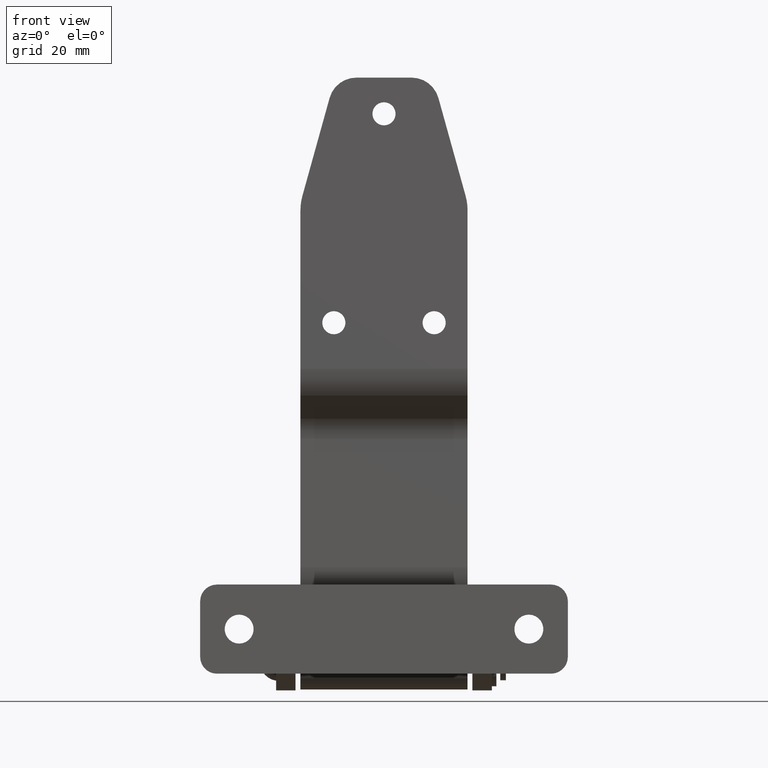
[diagram: clean part render]
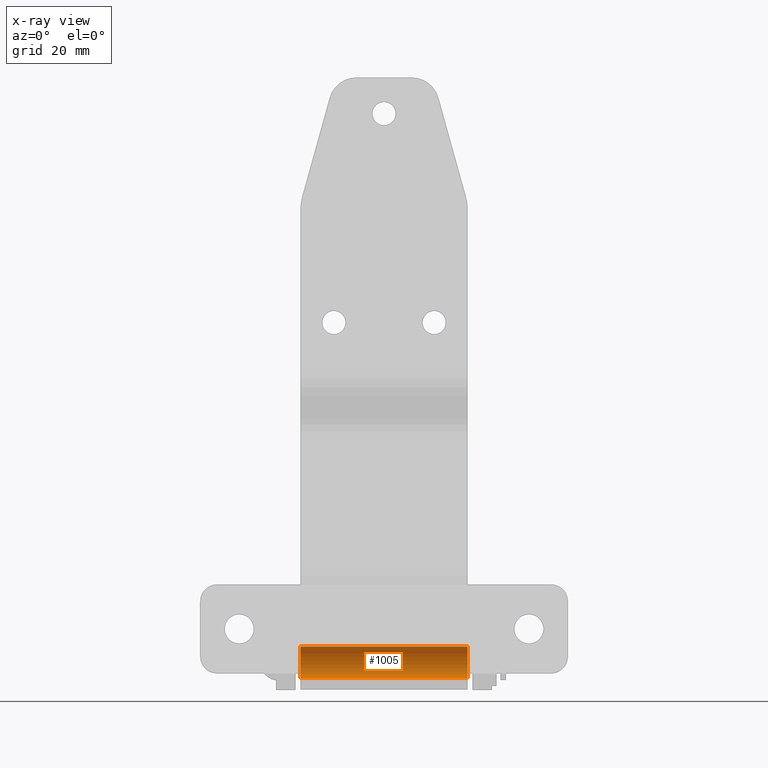
[diagram: x-ray — body ghosted, one internal face saturated and labeled with its STEP entity id]
A machine part, front view, then the same camera in x-ray: the body is ghosted and one INTERNAL B-rep face — a face not visible from any outside direction — is saturated and labeled: STEP entity #1005.
In plain terms, the highlighted cylindrical surface (edge-blend (fillet) strip) has radius 5.7 mm, axis along (-1, -0, -0).
Its self-contained STEP definition (entity closure, byte-faithful):
#34 = AXIS2_PLACEMENT_3D ( 'NONE', #2050, #2057, #2058 ) ;
#124 = EDGE_CURVE ( 'NONE', #3020, #3032, #4182, .T. ) ;
#505 = CARTESIAN_POINT ( 'NONE',  ( 30.00000000000000000, 6.980486755139913100E-016, -5.700000000000000200 ) ) ;
#509 = CARTESIAN_POINT ( 'NONE',  ( -30.00000000000000000, 0.0000000000000000000, 5.700000000000000200 ) ) ;
#517 = CARTESIAN_POINT ( 'NONE',  ( 30.00000000000000000, 0.0000000000000000000, 5.700000000000000200 ) ) ;
#525 = CARTESIAN_POINT ( 'NONE',  ( -30.00000000000000000, 6.980486755139913100E-016, -5.700000000000000200 ) ) ;
#1005 = ADVANCED_FACE ( 'NONE', ( #5232 ), #5249, .F. ) ;
#1095 = EDGE_CURVE ( 'NONE', #3040, #3024, #4215, .T. ) ;
#1114 = CARTESIAN_POINT ( 'NONE',  ( 30.00000000000000000, 0.0000000000000000000, 0.0000000000000000000 ) ) ;
#1115 = DIRECTION ( 'NONE',  ( 1.000000000000000000, 0.0000000000000000000, 0.0000000000000000000 ) ) ;
#1116 = DIRECTION ( 'NONE',  ( 0.0000000000000000000, 0.0000000000000000000, -1.000000000000000000 ) ) ;
#1209 = CARTESIAN_POINT ( 'NONE',  ( 30.00000000000000000, 0.0000000000000000000, 0.0000000000000000000 ) ) ;
#1210 = DIRECTION ( 'NONE',  ( -1.000000000000000000, -0.0000000000000000000, -0.0000000000000000000 ) ) ;
#1211 = DIRECTION ( 'NONE',  ( 0.0000000000000000000, 0.0000000000000000000, 1.000000000000000000 ) ) ;
#1847 = EDGE_CURVE ( 'NONE', #3020, #3040, #2320, .T. ) ;
#1849 = EDGE_CURVE ( 'NONE', #3032, #3024, #2326, .T. ) ;
#1962 = AXIS2_PLACEMENT_3D ( 'NONE', #1114, #1115, #1116 ) ;
#2050 = CARTESIAN_POINT ( 'NONE',  ( -30.00000000000000000, 0.0000000000000000000, 0.0000000000000000000 ) ) ;
#2057 = DIRECTION ( 'NONE',  ( 1.000000000000000000, 0.0000000000000000000, 0.0000000000000000000 ) ) ;
#2058 = DIRECTION ( 'NONE',  ( 0.0000000000000000000, 0.0000000000000000000, -1.000000000000000000 ) ) ;
#2320 = LINE ( 'NONE', #2321, #5264 ) ;
#2321 = CARTESIAN_POINT ( 'NONE',  ( 30.00000000000000000, 6.980486755139913100E-016, -5.700000000000000200 ) ) ;
#2322 = DIRECTION ( 'NONE',  ( -1.000000000000000000, -0.0000000000000000000, -0.0000000000000000000 ) ) ;
#2326 = LINE ( 'NONE', #2327, #5274 ) ;
#2327 = CARTESIAN_POINT ( 'NONE',  ( 30.00000000000000000, 0.0000000000000000000, 5.700000000000000200 ) ) ;
#2328 = DIRECTION ( 'NONE',  ( -1.000000000000000000, -0.0000000000000000000, -0.0000000000000000000 ) ) ;
#2885 = ORIENTED_EDGE ( 'NONE', *, *, #1095, .F. ) ;
#2886 = ORIENTED_EDGE ( 'NONE', *, *, #1847, .F. ) ;
#2887 = ORIENTED_EDGE ( 'NONE', *, *, #124, .T. ) ;
#2888 = ORIENTED_EDGE ( 'NONE', *, *, #1849, .T. ) ;
#3020 = VERTEX_POINT ( 'NONE', #505 ) ;
#3024 = VERTEX_POINT ( 'NONE', #509 ) ;
#3032 = VERTEX_POINT ( 'NONE', #517 ) ;
#3040 = VERTEX_POINT ( 'NONE', #525 ) ;
#3322 = EDGE_LOOP ( 'NONE', ( #2886, #2887, #2888, #2885 ) ) ;
#4182 = CIRCLE ( 'NONE', #1962, 5.700000000000000200 ) ;
#4215 = CIRCLE ( 'NONE', #34, 5.700000000000000200 ) ;
#5213 = AXIS2_PLACEMENT_3D ( 'NONE', #1209, #1210, #1211 ) ;
#5232 = FACE_OUTER_BOUND ( 'NONE', #3322, .T. ) ;
#5249 = CYLINDRICAL_SURFACE ( 'NONE', #5213, 5.700000000000000200 ) ;
#5264 = VECTOR ( 'NONE', #2322, 1000.000000000000000 ) ;
#5274 = VECTOR ( 'NONE', #2328, 1000.000000000000000 ) ;